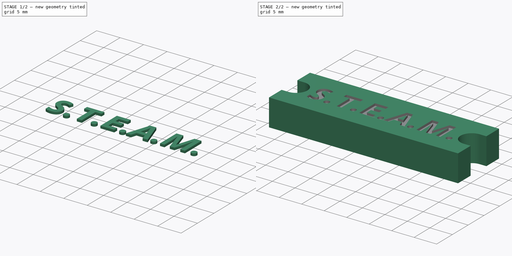
[diagram: build sequence overview — one tinted view per stage of 2, left to right]
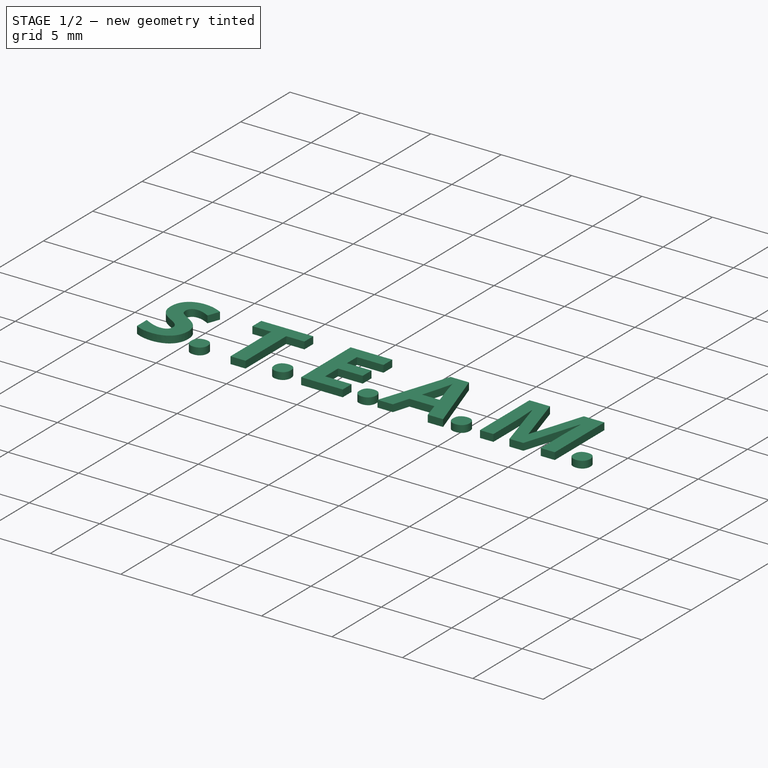
[diagram: stage 1 of 2 — iso view after this stage's code; geometry added in this stage tinted green]
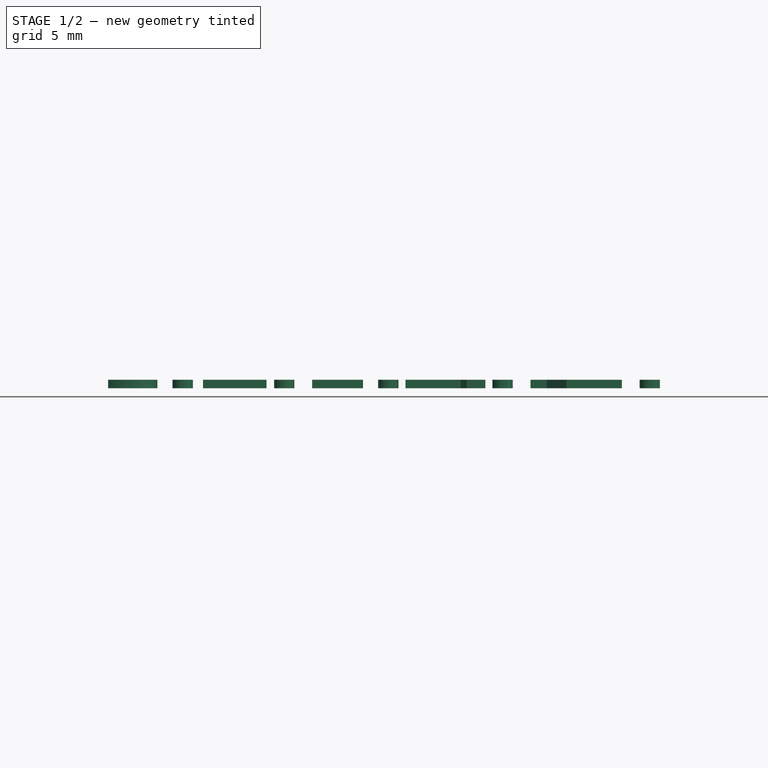
[diagram: stage 1 of 2 — front view after this stage's code; geometry added in this stage tinted green]
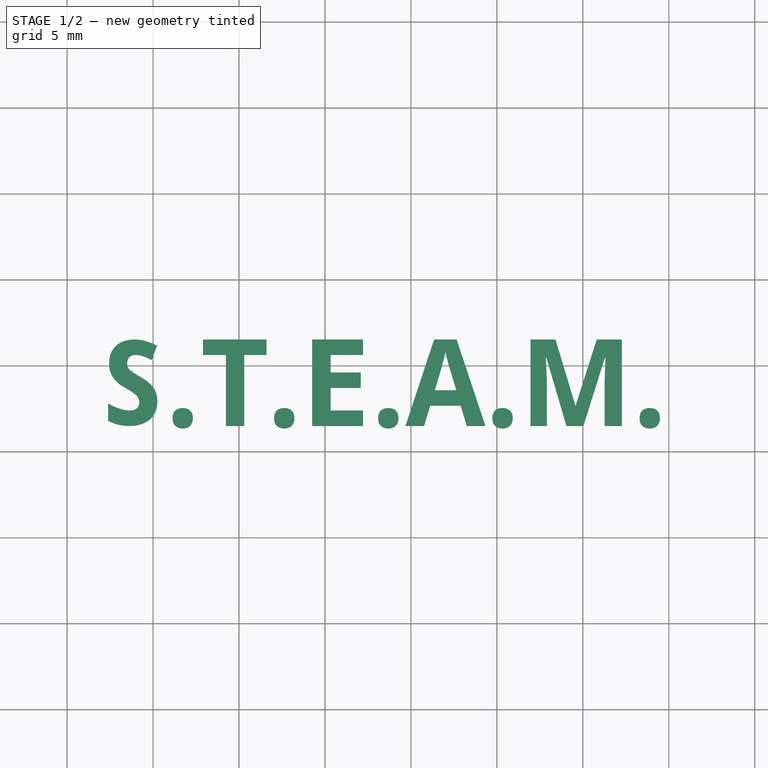
[diagram: stage 1 of 2 — top view after this stage's code; geometry added in this stage tinted green]
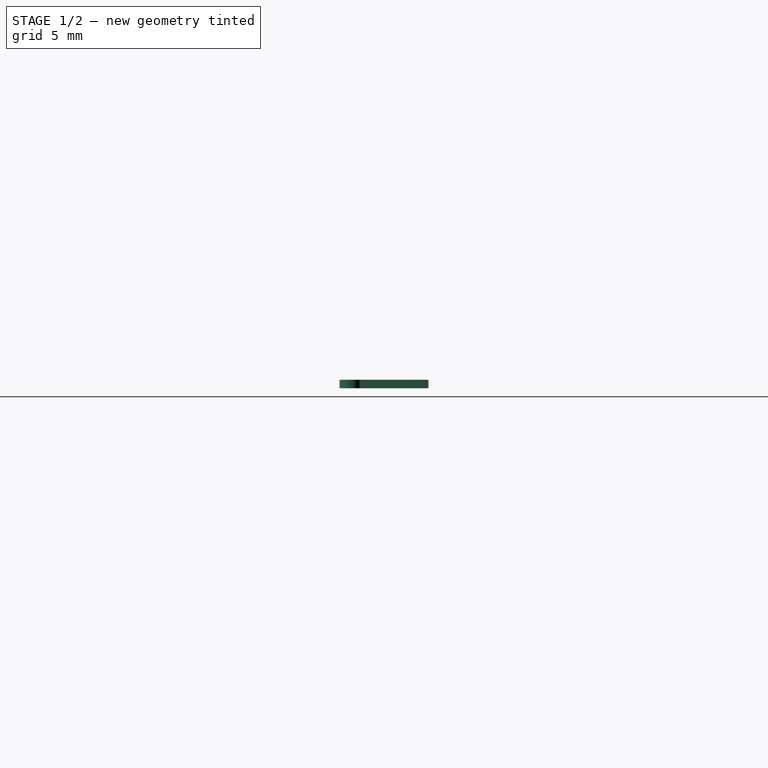
[diagram: stage 1 of 2 — right view after this stage's code; geometry added in this stage tinted green]
FCSTD DOCUMENT  (FreeCAD 0.16R6712 (Git))
Label: badge_mock
License: All rights reserved
LicenseURL: http://en.wikipedia.org/wiki/All_rights_reserved
objects: Sketcher::SketchObject×1, App::VRMLObject×1, PartDesign::Pad×1, Part::Part2DObjectPython×1, Part::Extrusion×1, Part::Cut×1
note: 6 computed .brp shape members not serialized (recipe doc carries the construction recipe); baked Part::Feature solids carry a one-line shape summary decoded from their .brp

FEATURE [Sketcher::SketchObject] Sketch
  sketch-geometry (12):
    g0: LineSegment StartX=-23 StartY=10.5 StartZ=0 EndX=19 EndY=10.5 EndZ=0
    g1: LineSegment StartX=19 StartY=10.5 StartZ=0 EndX=19 EndY=6.5 EndZ=0
    g2: LineSegment StartX=19 StartY=6.5 StartZ=0 EndX=17.5 EndY=6.5 EndZ=0
    g3: ArcOfCircle CenterX=17.5 CenterY=4 CenterZ=0 NormalX=0 NormalY=0 NormalZ=1 Radius=2.5 StartAngle=1.5708 EndAngle=4.71239
    g4: LineSegment StartX=17.5 StartY=1.5 StartZ=0 EndX=19 EndY=1.5 EndZ=0
    g5: LineSegment StartX=19 StartY=1.5 StartZ=0 EndX=19 EndY=-2.5 EndZ=0
    g6: LineSegment StartX=19 StartY=-2.5 StartZ=0 EndX=-23 EndY=-2.5 EndZ=0
    g7: LineSegment StartX=-23 StartY=-2.5 StartZ=0 EndX=-23 EndY=1.5 EndZ=0
    g8: LineSegment StartX=-23 StartY=1.5 StartZ=0 EndX=-21.5 EndY=1.5 EndZ=0
    g9: ArcOfCircle CenterX=-21.5 CenterY=4 CenterZ=0 NormalX=0 NormalY=0 NormalZ=1 Radius=2.5 StartAngle=4.71239 EndAngle=7.85398
    g10: LineSegment StartX=-21.5 StartY=6.5 StartZ=0 EndX=-23 EndY=6.5 EndZ=0
    g11: LineSegment StartX=-23 StartY=6.5 StartZ=0 EndX=-23 EndY=10.5 EndZ=0
  constraints (37):
    c: Horizontal(g0)
    c: Coincident(g0,g1)
    c: Vertical(g1)
    c: Coincident(g1,g2)
    c: Horizontal(g2)
    c: Tangent(g2,g3) = -1.5708
    c: Coincident(g3,g4)
    c: Horizontal(g4)
    c: Coincident(g4,g5)
    c: Vertical(g5)
    c: Coincident(g5,g6)
    c: Horizontal(g6)
    c: Coincident(g6,g7)
    c: Vertical(g7)
    c: Coincident(g7,g8)
    c: Tangent(g8,g9) = -1.5708
    c: Coincident(g9,g10)
    c: Horizontal(g10)
    c: Coincident(g10,g11)
    c: Coincident(g11,g0)
    c: Vertical(g11)
    c: Radius(g9) = 2.5
    c: Equal(g9,g3)
    c: Angle(g9) = 3.14159
    c: Angle(g3) = 3.14159
    c: Equal(g0,g6)
    c: Equal(g11,g7)
    c: Equal(g7,g1)
    c: Equal(g1,g5)
    c: Equal(g10,g8)
    c: Equal(g8,g4)
    c: Equal(g4,g2)
    c: DistanceX(g6,g6) = 42
    c: DistanceX(g0,g-1) = 23
    c: DistanceY(g-1,g0) = 10.5
    c: DistanceX(g10,g10) = 1.5
    c: DistanceY(g6,g0) = 13
FEATURE [App::VRMLObject] badge
  Placement = pos=(-61,51,-1) rot=(0,0,1;0rad)
  Resources = badge/shapes3D/CR2032_HOR_HOLD.wrl | badge/shapes3D/LH2040_ra.wrl | badge/shapes3D/resistor_7_62mm.wrl | badge/shapes3D/Res40-Axial_Short_0.25W-10R.wrl
FEATURE [PartDesign::Pad] Pad
  Length = 6
  Length2 = 100
  Sketch = -> Sketch
  Type = 0
FEATURE [Part::Part2DObjectPython] ShapeString  # Draft 2D object (typed FeaturePython)
  FontFile = <path>
  Placement = pos=(-18,1.5,6) rot=(0,0,1;0rad)
  Size = 5.5
  String = S.T.E.A.M.
  Support = -> Pad
  Tracking = 0
FEATURE [Part::Extrusion] Extrude
  Base = -> ShapeString
  Dir = (0,0,-0.5)
  Solid = true
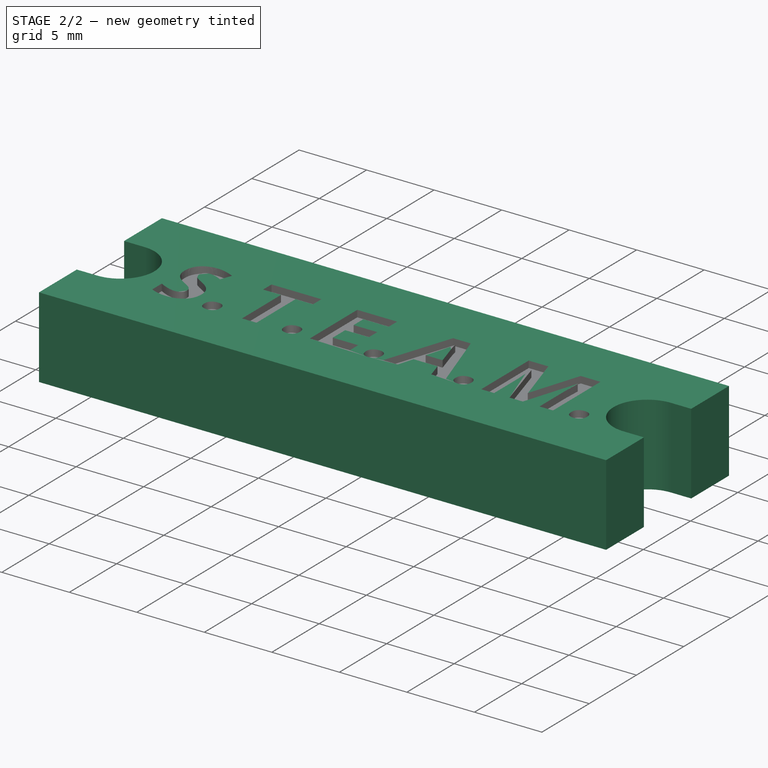
[diagram: stage 2 of 2 — iso view after this stage's code; geometry added in this stage tinted green]
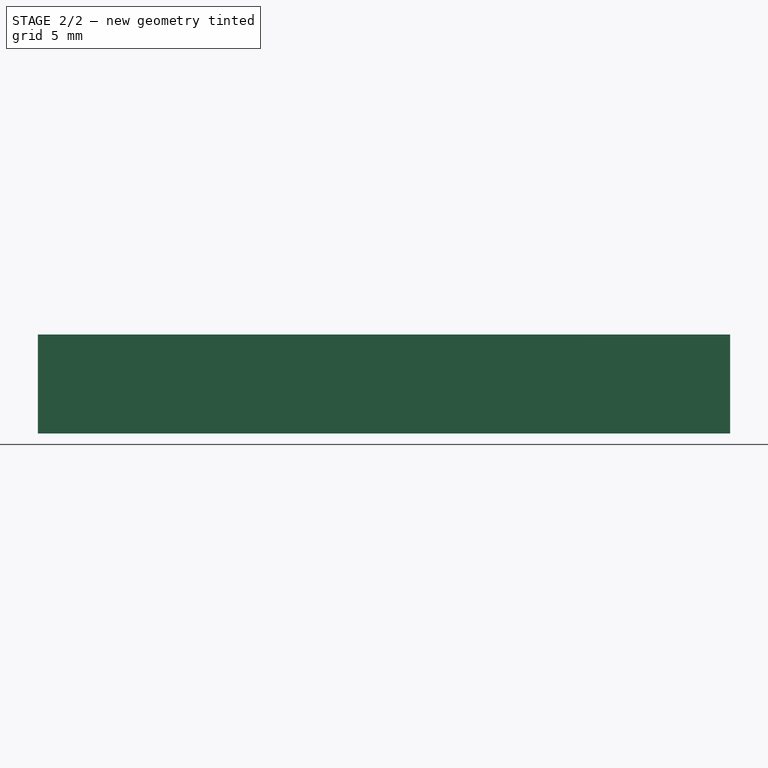
[diagram: stage 2 of 2 — front view after this stage's code; geometry added in this stage tinted green]
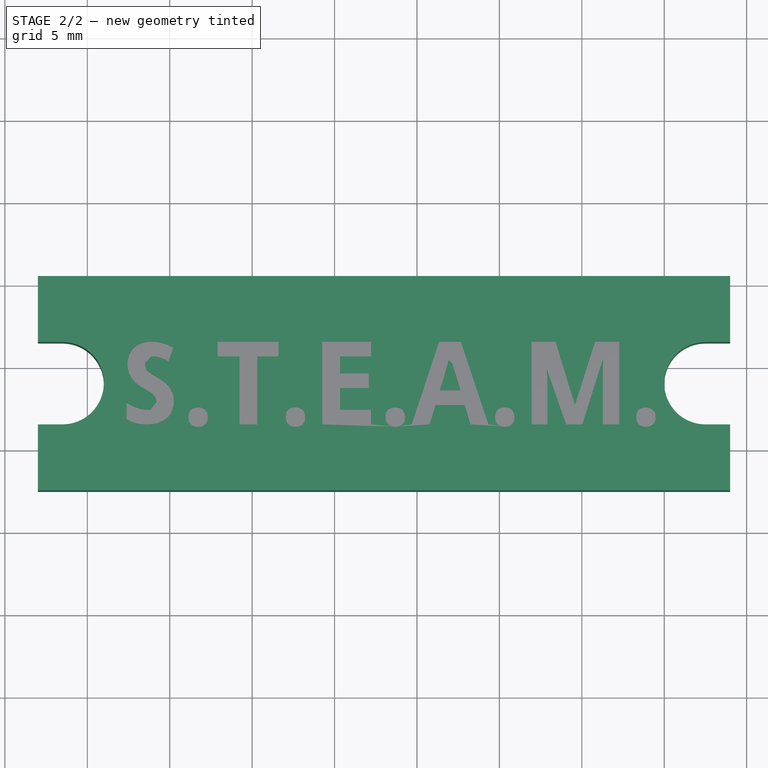
[diagram: stage 2 of 2 — top view after this stage's code; geometry added in this stage tinted green]
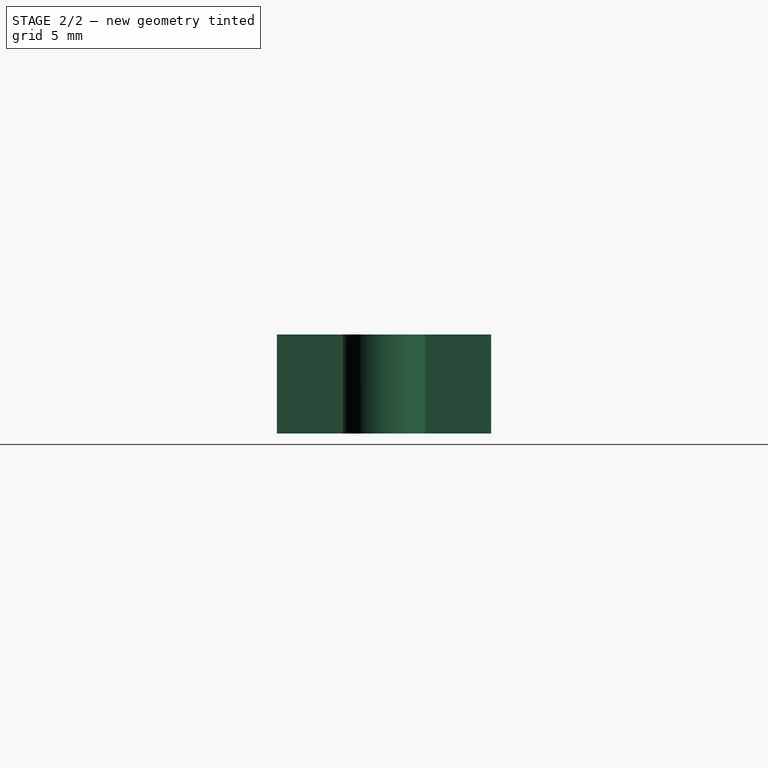
[diagram: stage 2 of 2 — right view after this stage's code; geometry added in this stage tinted green]
FEATURE [Part::Cut] Cut
  Base = -> Pad
  Tool = -> Extrude
note: 1 file-system path scrubbed to <path> (originals preserved in the JSON sidecar)
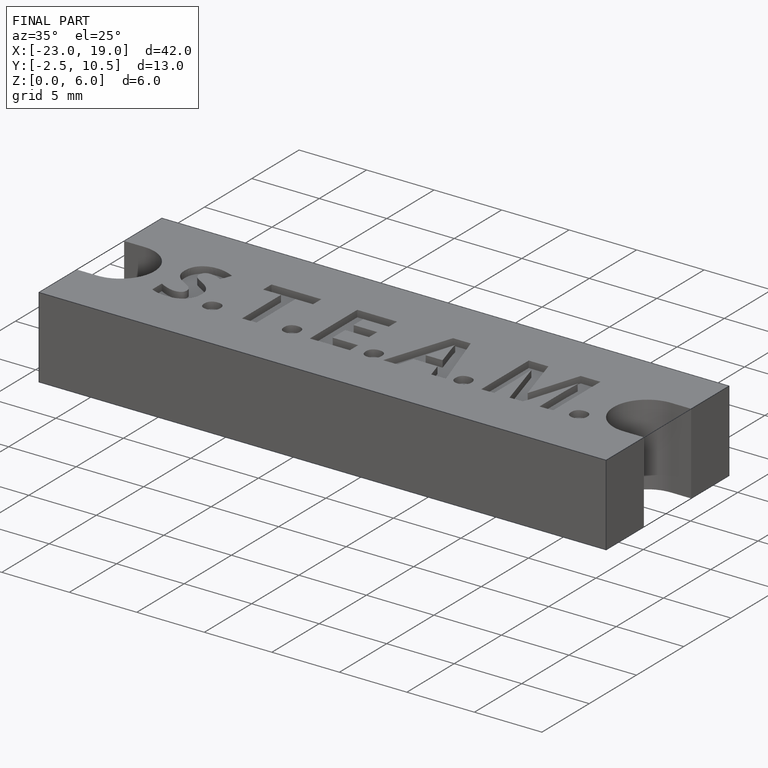
[diagram: finished part — iso view with bounding-box wireframe]
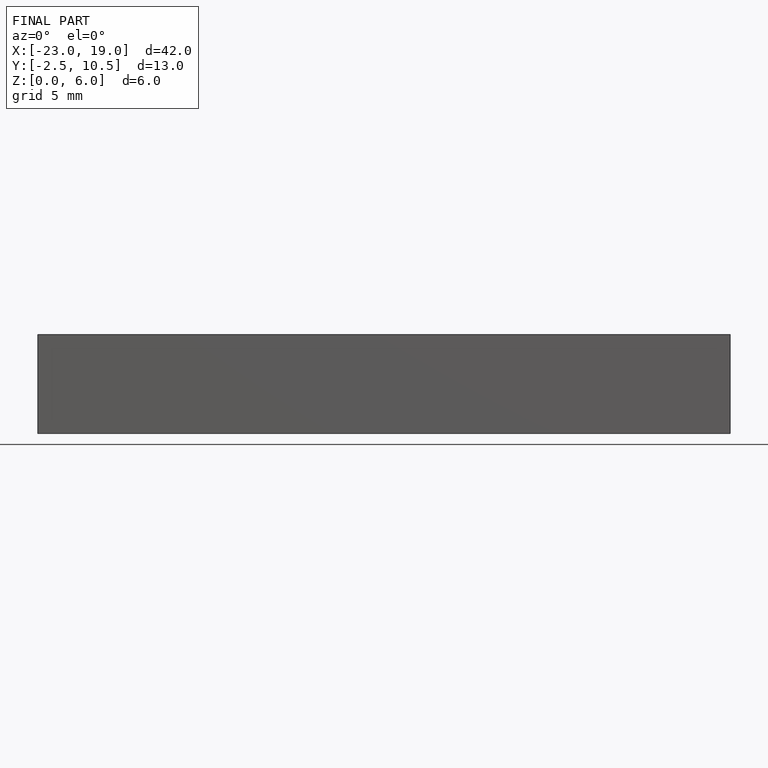
[diagram: finished part — front view with bounding-box wireframe]
